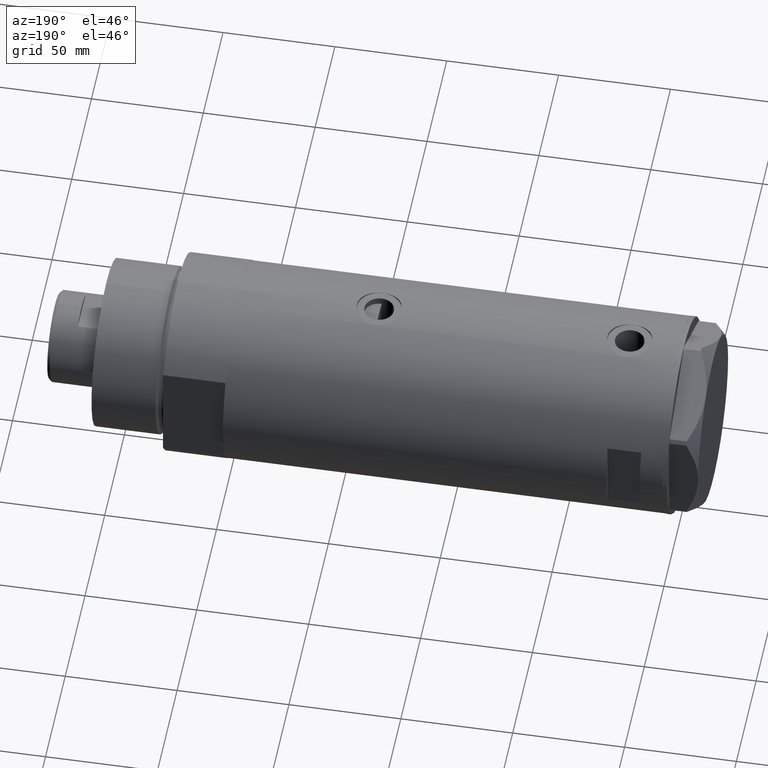
[diagram: clean part render]
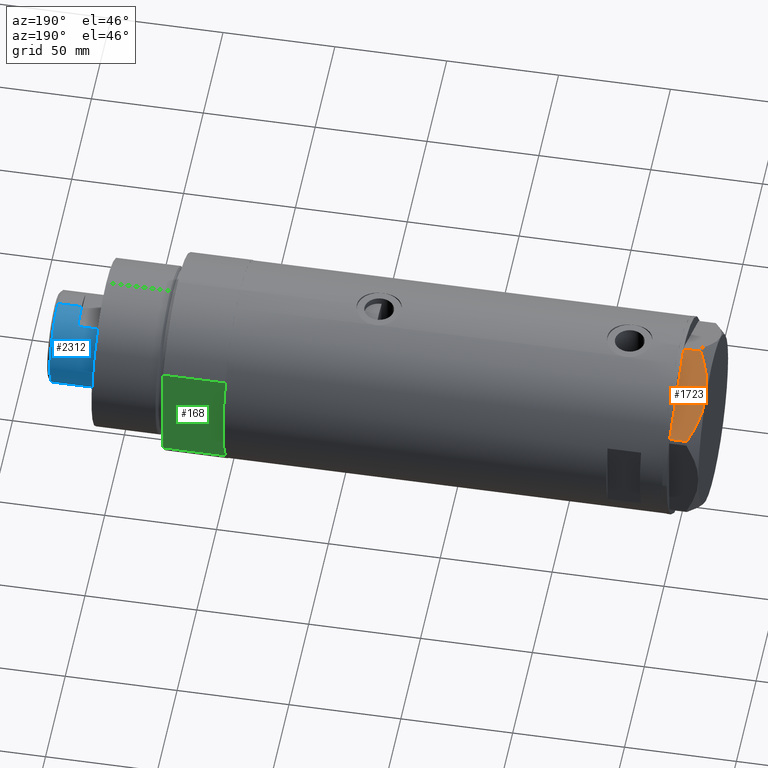
[diagram: same view with three faces highlighted in distinct colors, each labeled with its STEP entity id]
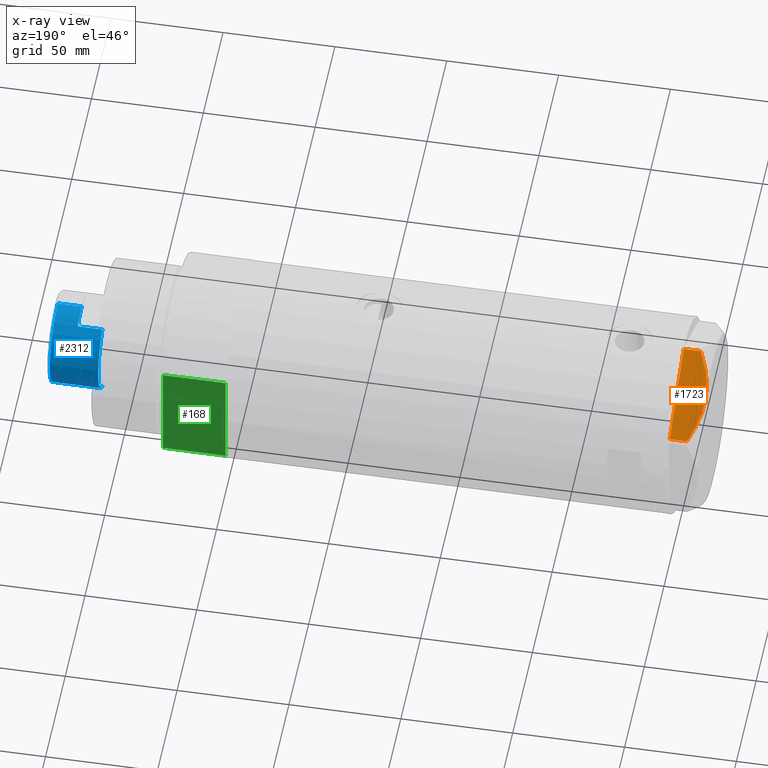
[diagram: x-ray of the same camera — body ghosted, the three highlighted faces saturated]
A machine part, auxiliary view with three faces highlighted in distinct colors.
The next image is the same camera in x-ray (body ghosted, the three faces saturated) — at least one of them is partly hidden behind the body in this view.
Their STEP definitions:

[orange] entity #1723 — the highlighted planar face has unit normal (-0, -0.5, -0.866).
#9 = CARTESIAN_POINT ( 'NONE',  ( 20.42709085942840730, -31.79635891736482023, 12.99999999999999645 ) ) ;
#47 = DIRECTION ( 'NONE',  ( 0.000000000000000000, 0.000000000000000000, -1.000000000000000000 ) ) ;
#224 = CARTESIAN_POINT ( 'NONE',  ( 18.09346002772999995, -33.14368130623511632, 12.99999999999999822 ) ) ;
#316 = VERTEX_POINT ( 'NONE', #854 ) ;
#395 = CARTESIAN_POINT ( 'NONE',  ( 33.94595399727396057, -23.99123964559198541, 9.210778219601310823 ) ) ;
#398 = FACE_OUTER_BOUND ( 'NONE', #2390, .T. ) ;
#626 = CARTESIAN_POINT ( 'NONE',  ( 15.73313492417777937, -34.50641564014599538, 12.83692902789789514 ) ) ;
#705 = ORIENTED_EDGE ( 'NONE', *, *, #1996, .T. ) ;
#758 = CARTESIAN_POINT ( 'NONE',  ( 21.96683860604023764, -30.90738514137435544, 12.87183830165162846 ) ) ;
#804 = VERTEX_POINT ( 'NONE', #3752 ) ;
#854 = CARTESIAN_POINT ( 'NONE',  ( 36.78005154776143115, -22.35497266190837706, 0.000000000000000000 ) ) ;
#903 = CARTESIAN_POINT ( 'NONE',  ( 18.87499999999998579, -32.69245899286256218, 13.00000000000000000 ) ) ;
#955 = CARTESIAN_POINT ( 'NONE',  ( 6.659529780759589457, -39.74506401221886165, 10.58681170757598977 ) ) ;
#973 = EDGE_CURVE ( 'NONE', #1575, #804, #4495, .T. ) ;
#979 = CARTESIAN_POINT ( 'NONE',  ( 12.63736081963744873, -36.29376165275263588, 12.35956205105863326 ) ) ;
#1043 = CARTESIAN_POINT ( 'NONE',  ( -4.107234936485837051E-15, -43.58994532381674247, 13.00000000000000000 ) ) ;
#1064 = CARTESIAN_POINT ( 'NONE',  ( 0.9699484522384296259, -43.02994532381681836, 7.709124142616899711 ) ) ;
#1100 = DIRECTION ( 'NONE',  ( -0.8660254037844388186, -0.4999999999999997224, 0.000000000000000000 ) ) ;
#1167 = DIRECTION ( 'NONE',  ( 0.000000000000000000, 0.000000000000000000, 1.000000000000000000 ) ) ;
#1201 = CARTESIAN_POINT ( 'NONE',  ( 0.9699484522385760643, -43.02994532381674020, 0.000000000000000000 ) ) ;
#1207 = DIRECTION ( 'NONE',  ( 0.8660254037844388186, 0.4999999999999997224, 0.000000000000000000 ) ) ;
#1335 = AXIS2_PLACEMENT_3D ( 'NONE', #1043, #2446, #1100 ) ;
#1488 = EDGE_CURVE ( 'NONE', #4180, #316, #2573, .T. ) ;
#1521 = B_SPLINE_CURVE_WITH_KNOTS ( 'NONE', 3,
 ( #2367, #1612, #955, #4161, #979, #3456, #626, #3009, #224, #4405 ),
 .UNSPECIFIED., .F., .F.,
 ( 4, 2, 2, 2, 4 ),
 ( 0.001231023567492486306, 0.01191187151549576335, 0.01725229548949740177, 0.01992250747649822532, 0.02259271946349904886 ),
 .UNSPECIFIED. ) ;
#1575 = VERTEX_POINT ( 'NONE', #903 ) ;
#1612 = CARTESIAN_POINT ( 'NONE',  ( 3.783045159267917956, -41.40580318275688398, 9.269459228581803600 ) ) ;
#1723 = ADVANCED_FACE ( 'NONE', ( #398 ), #3537, .F. ) ;
#1813 = CARTESIAN_POINT ( 'NONE',  ( 35.37320095427428157, -23.16721823076776232, 8.489459328479206590 ) ) ;
#1996 = EDGE_CURVE ( 'NONE', #316, #804, #3273, .T. ) ;
#2052 = EDGE_CURVE ( 'NONE', #2791, #4180, #2584, .T. ) ;
#2155 = CARTESIAN_POINT ( 'NONE',  ( 28.80058011347544422, -26.96192264248431769, 11.30742055474504859 ) ) ;
#2175 = CARTESIAN_POINT ( 'NONE',  ( 26.54034249379520460, -28.26687144063922830, 12.01242981158384993 ) ) ;
#2367 = CARTESIAN_POINT ( 'NONE',  ( 0.9699484522384296259, -43.02994532381681836, 7.709124142616899711 ) ) ;
#2390 = EDGE_LOOP ( 'NONE', ( #4453, #4528, #4504, #705, #2460 ) ) ;
#2446 = DIRECTION ( 'NONE',  ( -0.4999999999999997224, 0.8660254037844388186, 0.000000000000000000 ) ) ;
#2460 = ORIENTED_EDGE ( 'NONE', *, *, #973, .F. ) ;
#2573 = LINE ( 'NONE', #4360, #3608 ) ;
#2584 = LINE ( 'NONE', #3916, #3964 ) ;
#2629 = EDGE_CURVE ( 'NONE', #2791, #1575, #1521, .T. ) ;
#2791 = VERTEX_POINT ( 'NONE', #1064 ) ;
#2826 = CARTESIAN_POINT ( 'NONE',  ( 29.55075297405426227, -26.52881013949038547, 11.04644118613091841 ) ) ;
#2913 = CARTESIAN_POINT ( 'NONE',  ( 36.78005154776145247, -22.35497266190836640, 13.00000000000000000 ) ) ;
#3009 = CARTESIAN_POINT ( 'NONE',  ( 17.30879953081281641, -33.59670525535269547, 12.96759879420491401 ) ) ;
#3184 = CARTESIAN_POINT ( 'NONE',  ( 18.87499999999998579, -32.69245899286256218, 13.00000000000000000 ) ) ;
#3223 = CARTESIAN_POINT ( 'NONE',  ( 36.78005154775924268, -22.35497266190964538, 7.709124142618180464 ) ) ;
#3273 = LINE ( 'NONE', #2913, #3546 ) ;
#3456 = CARTESIAN_POINT ( 'NONE',  ( 14.95332775978646822, -34.95663751642331363, 12.73960743196719747 ) ) ;
#3537 = PLANE ( 'NONE',  #1335 ) ;
#3546 = VECTOR ( 'NONE', #1167, 1000.000000000000000 ) ;
#3565 = CARTESIAN_POINT ( 'NONE',  ( 31.76569840794746824, -25.25001079699180551, 10.17879673963500942 ) ) ;
#3608 = VECTOR ( 'NONE', #1207, 1000.000000000000114 ) ;
#3752 = CARTESIAN_POINT ( 'NONE',  ( 36.78005154775924268, -22.35497266190964538, 7.709124142618180464 ) ) ;
#3916 = CARTESIAN_POINT ( 'NONE',  ( 0.9699484522385762864, -43.02994532381674020, 13.00000000000000000 ) ) ;
#3919 = CARTESIAN_POINT ( 'NONE',  ( 25.02345495740816972, -29.14264686810265914, 12.37795492145971821 ) ) ;
#3964 = VECTOR ( 'NONE', #47, 1000.000000000000000 ) ;
#4161 = CARTESIAN_POINT ( 'NONE',  ( 11.12401302890051191, -37.16749340711212568, 11.98878493998158312 ) ) ;
#4180 = VERTEX_POINT ( 'NONE', #1201 ) ;
#4215 = CARTESIAN_POINT ( 'NONE',  ( 31.03235934281740427, -25.67340430365192105, 10.48240969891324070 ) ) ;
#4360 = CARTESIAN_POINT ( 'NONE',  ( -4.107234936485837051E-15, -43.58994532381674247, 0.000000000000000000 ) ) ;
#4405 = CARTESIAN_POINT ( 'NONE',  ( 18.87499999999998579, -32.69245899286256218, 13.00000000000000000 ) ) ;
#4453 = ORIENTED_EDGE ( 'NONE', *, *, #2629, .F. ) ;
#4495 = B_SPLINE_CURVE_WITH_KNOTS ( 'NONE', 3,
 ( #3184, #9, #758, #3919, #2175, #2155, #2826, #4215, #3565, #395, #1813, #3223 ),
 .UNSPECIFIED., .F., .F.,
 ( 4, 2, 2, 2, 2, 4 ),
 ( 0.02259271946349904886, 0.02789559809390703207, 0.03319847672431501528, 0.03584991603951900863, 0.03850135535472300197, 0.04380423398513099559 ),
 .UNSPECIFIED. ) ;
#4504 = ORIENTED_EDGE ( 'NONE', *, *, #1488, .T. ) ;
#4528 = ORIENTED_EDGE ( 'NONE', *, *, #2052, .T. ) ;

[blue] entity #2312 — the highlighted cylindrical surface (partial cylindrical patch) has radius 20.5 mm, axis along (-1, -0, 0).
#20 = CARTESIAN_POINT ( 'NONE',  ( 0.000000000000000000, 0.000000000000000000, 241.3000000000000114 ) ) ;
#28 = DIRECTION ( 'NONE',  ( 1.000000000000000000, 0.000000000000000000, 0.000000000000000000 ) ) ;
#63 = DIRECTION ( 'NONE',  ( 1.000000000000000000, 0.000000000000000000, 0.000000000000000000 ) ) ;
#116 = AXIS2_PLACEMENT_3D ( 'NONE', #1284, #4080, #4450 ) ;
#123 = ORIENTED_EDGE ( 'NONE', *, *, #4149, .T. ) ;
#169 = ORIENTED_EDGE ( 'NONE', *, *, #2854, .F. ) ;
#174 = EDGE_CURVE ( 'NONE', #2110, #2589, #727, .T. ) ;
#222 = VECTOR ( 'NONE', #1010, 1000.000000000000000 ) ;
#272 = CARTESIAN_POINT ( 'NONE',  ( 20.50000000000000355, 2.510525938252074481E-15, 241.3000000000000114 ) ) ;
#331 = CYLINDRICAL_SURFACE ( 'NONE', #1589, 20.50000000000000355 ) ;
#469 = DIRECTION ( 'NONE',  ( -0.000000000000000000, -0.000000000000000000, -1.000000000000000000 ) ) ;
#558 = VECTOR ( 'NONE', #1662, 1000.000000000000000 ) ;
#646 = VECTOR ( 'NONE', #2292, 1000.000000000000000 ) ;
#649 = AXIS2_PLACEMENT_3D ( 'NONE', #1916, #3639, #63 ) ;
#727 = LINE ( 'NONE', #3130, #222 ) ;
#748 = DIRECTION ( 'NONE',  ( -1.000000000000000000, 0.000000000000000000, 0.000000000000000000 ) ) ;
#810 = CARTESIAN_POINT ( 'NONE',  ( 20.50000000000000355, 2.510525938252074481E-15, 251.9000000000001194 ) ) ;
#914 = EDGE_CURVE ( 'NONE', #3361, #2110, #4198, .T. ) ;
#969 = ORIENTED_EDGE ( 'NONE', *, *, #914, .T. ) ;
#975 = LINE ( 'NONE', #2363, #558 ) ;
#1000 = LINE ( 'NONE', #272, #646 ) ;
#1010 = DIRECTION ( 'NONE',  ( -0.000000000000000000, -0.000000000000000000, -1.000000000000000000 ) ) ;
#1051 = DIRECTION ( 'NONE',  ( -0.000000000000000000, -0.000000000000000000, -1.000000000000000000 ) ) ;
#1112 = VERTEX_POINT ( 'NONE', #4447 ) ;
#1121 = CARTESIAN_POINT ( 'NONE',  ( -20.50000000000000000, 0.000000000000000000, 241.3000000000000114 ) ) ;
#1284 = CARTESIAN_POINT ( 'NONE',  ( 0.000000000000000000, 0.000000000000000000, 230.3000000000000114 ) ) ;
#1336 = VERTEX_POINT ( 'NONE', #810 ) ;
#1370 = CARTESIAN_POINT ( 'NONE',  ( -17.97852886083842705, 9.849999999999965894, 230.3000000000000114 ) ) ;
#1419 = CARTESIAN_POINT ( 'NONE',  ( 0.000000000000000000, 0.000000000000000000, 241.3000000000000114 ) ) ;
#1589 = AXIS2_PLACEMENT_3D ( 'NONE', #20, #1051, #748 ) ;
#1662 = DIRECTION ( 'NONE',  ( -0.000000000000000000, -0.000000000000000000, -1.000000000000000000 ) ) ;
#1792 = CARTESIAN_POINT ( 'NONE',  ( 0.000000000000000000, 0.000000000000000000, 241.3000000000000114 ) ) ;
#1916 = CARTESIAN_POINT ( 'NONE',  ( 0.000000000000000000, 0.000000000000000000, 251.9000000000001194 ) ) ;
#2103 = DIRECTION ( 'NONE',  ( 0.000000000000000000, 0.000000000000000000, 1.000000000000000000 ) ) ;
#2110 = VERTEX_POINT ( 'NONE', #3386 ) ;
#2117 = ORIENTED_EDGE ( 'NONE', *, *, #2278, .T. ) ;
#2278 = EDGE_CURVE ( 'NONE', #3061, #2412, #2695, .T. ) ;
#2292 = DIRECTION ( 'NONE',  ( -0.000000000000000000, -0.000000000000000000, -1.000000000000000000 ) ) ;
#2312 = ADVANCED_FACE ( 'NONE', ( #3889 ), #331, .T. ) ;
#2363 = CARTESIAN_POINT ( 'NONE',  ( -20.50000000000000355, 0.000000000000000000, 241.3000000000000114 ) ) ;
#2412 = VERTEX_POINT ( 'NONE', #1121 ) ;
#2458 = EDGE_CURVE ( 'NONE', #1112, #2412, #975, .T. ) ;
#2513 = ORIENTED_EDGE ( 'NONE', *, *, #4309, .T. ) ;
#2585 = VERTEX_POINT ( 'NONE', #1370 ) ;
#2589 = VERTEX_POINT ( 'NONE', #3399 ) ;
#2626 = CIRCLE ( 'NONE', #649, 20.50000000000000355 ) ;
#2695 = CIRCLE ( 'NONE', #3575, 20.50000000000000000 ) ;
#2854 = EDGE_CURVE ( 'NONE', #3061, #2585, #4356, .T. ) ;
#3022 = ORIENTED_EDGE ( 'NONE', *, *, #2458, .F. ) ;
#3061 = VERTEX_POINT ( 'NONE', #4204 ) ;
#3130 = CARTESIAN_POINT ( 'NONE',  ( 17.97852886083842705, 9.849999999999997868, 241.3000000000000114 ) ) ;
#3346 = ORIENTED_EDGE ( 'NONE', *, *, #3721, .T. ) ;
#3361 = VERTEX_POINT ( 'NONE', #4166 ) ;
#3368 = VECTOR ( 'NONE', #469, 1000.000000000000000 ) ;
#3386 = CARTESIAN_POINT ( 'NONE',  ( 17.97852886083842705, 9.849999999999997868, 241.3000000000000114 ) ) ;
#3393 = ORIENTED_EDGE ( 'NONE', *, *, #174, .T. ) ;
#3399 = CARTESIAN_POINT ( 'NONE',  ( 17.97852886083842705, 9.849999999999997868, 230.3000000000000114 ) ) ;
#3466 = EDGE_LOOP ( 'NONE', ( #2513, #3346, #969, #3393, #123, #169, #2117, #3022 ) ) ;
#3575 = AXIS2_PLACEMENT_3D ( 'NONE', #1419, #2103, #3852 ) ;
#3639 = DIRECTION ( 'NONE',  ( 0.000000000000000000, 0.000000000000000000, -1.000000000000000000 ) ) ;
#3656 = CARTESIAN_POINT ( 'NONE',  ( -17.97852886083842705, 9.849999999999997868, 241.3000000000000114 ) ) ;
#3721 = EDGE_CURVE ( 'NONE', #1336, #3361, #1000, .T. ) ;
#3852 = DIRECTION ( 'NONE',  ( 1.000000000000000000, 0.000000000000000000, 0.000000000000000000 ) ) ;
#3880 = DIRECTION ( 'NONE',  ( 0.000000000000000000, 0.000000000000000000, 1.000000000000000000 ) ) ;
#3889 = FACE_OUTER_BOUND ( 'NONE', #3466, .T. ) ;
#3899 = AXIS2_PLACEMENT_3D ( 'NONE', #1792, #3880, #28 ) ;
#4080 = DIRECTION ( 'NONE',  ( 0.000000000000000000, 0.000000000000000000, 1.000000000000000000 ) ) ;
#4149 = EDGE_CURVE ( 'NONE', #2589, #2585, #4170, .T. ) ;
#4166 = CARTESIAN_POINT ( 'NONE',  ( 20.50000000000000000, 2.510525938252074481E-15, 241.3000000000000114 ) ) ;
#4170 = CIRCLE ( 'NONE', #116, 20.49999999999998934 ) ;
#4198 = CIRCLE ( 'NONE', #3899, 20.50000000000000000 ) ;
#4204 = CARTESIAN_POINT ( 'NONE',  ( -17.97852886083842705, 9.849999999999997868, 241.3000000000000114 ) ) ;
#4309 = EDGE_CURVE ( 'NONE', #1112, #1336, #2626, .T. ) ;
#4356 = LINE ( 'NONE', #3656, #3368 ) ;
#4447 = CARTESIAN_POINT ( 'NONE',  ( -20.50000000000000355, 0.000000000000000000, 251.9000000000001194 ) ) ;
#4450 = DIRECTION ( 'NONE',  ( 1.000000000000000000, 0.000000000000000000, 0.000000000000000000 ) ) ;

[green] entity #168 — the highlighted planar face has unit normal (0, -1, -0).
#41 = DIRECTION ( 'NONE',  ( -0.000000000000000000, -0.000000000000000000, 1.000000000000000000 ) ) ;
#112 = ORIENTED_EDGE ( 'NONE', *, *, #1160, .F. ) ;
#168 = ADVANCED_FACE ( 'NONE', ( #3488 ), #1358, .F. ) ;
#312 = DIRECTION ( 'NONE',  ( 0.000000000000000000, -0.000000000000000000, -1.000000000000000000 ) ) ;
#360 = LINE ( 'NONE', #1810, #1413 ) ;
#502 = CARTESIAN_POINT ( 'NONE',  ( -23.01629857296780557, 37.50000000000000000, 0.000000000000000000 ) ) ;
#786 = DIRECTION ( 'NONE',  ( 1.000000000000000000, 0.000000000000000000, 0.000000000000000000 ) ) ;
#875 = LINE ( 'NONE', #1942, #4496 ) ;
#876 = LINE ( 'NONE', #502, #1083 ) ;
#949 = DIRECTION ( 'NONE',  ( 1.000000000000000000, 0.000000000000000000, 0.000000000000000000 ) ) ;
#996 = CARTESIAN_POINT ( 'NONE',  ( 0.000000000000000000, 37.50000000000000000, 27.89999999999999858 ) ) ;
#1016 = VERTEX_POINT ( 'NONE', #3292 ) ;
#1022 = CARTESIAN_POINT ( 'NONE',  ( 13.91941090707505957, 37.50000000000000000, 0.000000000000000000 ) ) ;
#1068 = CARTESIAN_POINT ( 'NONE',  ( -23.01629857296780557, 37.50000000000000000, 0.000000000000000000 ) ) ;
#1083 = VECTOR ( 'NONE', #2229, 1000.000000000000000 ) ;
#1088 = CARTESIAN_POINT ( 'NONE',  ( 23.01629857296780557, 37.50000000000000000, 0.000000000000000000 ) ) ;
#1160 = EDGE_CURVE ( 'NONE', #1494, #1742, #4397, .T. ) ;
#1187 = ORIENTED_EDGE ( 'NONE', *, *, #4300, .F. ) ;
#1358 = PLANE ( 'NONE',  #2495 ) ;
#1413 = VECTOR ( 'NONE', #2608, 1000.000000000000000 ) ;
#1494 = VERTEX_POINT ( 'NONE', #3971 ) ;
#1495 = DIRECTION ( 'NONE',  ( 1.000000000000000000, 0.000000000000000000, 0.000000000000000000 ) ) ;
#1729 = VERTEX_POINT ( 'NONE', #4160 ) ;
#1742 = VERTEX_POINT ( 'NONE', #1022 ) ;
#1799 = ORIENTED_EDGE ( 'NONE', *, *, #2246, .T. ) ;
#1810 = CARTESIAN_POINT ( 'NONE',  ( -23.01629857296780557, 37.50000000000000000, 0.000000000000000000 ) ) ;
#1942 = CARTESIAN_POINT ( 'NONE',  ( -23.01629857296780557, 37.50000000000000000, 27.89999999999999858 ) ) ;
#1975 = CARTESIAN_POINT ( 'NONE',  ( -23.01629857296780557, 37.50000000000000000, 0.000000000000000000 ) ) ;
#2043 = EDGE_CURVE ( 'NONE', #1729, #1016, #360, .T. ) ;
#2132 = ORIENTED_EDGE ( 'NONE', *, *, #4454, .T. ) ;
#2229 = DIRECTION ( 'NONE',  ( 1.000000000000000000, 0.000000000000000000, 0.000000000000000000 ) ) ;
#2246 = EDGE_CURVE ( 'NONE', #3980, #2541, #875, .T. ) ;
#2257 = EDGE_CURVE ( 'NONE', #4442, #2541, #3541, .T. ) ;
#2298 = ORIENTED_EDGE ( 'NONE', *, *, #2043, .T. ) ;
#2316 = VECTOR ( 'NONE', #41, 1000.000000000000000 ) ;
#2433 = VECTOR ( 'NONE', #4050, 1000.000000000000000 ) ;
#2455 = ORIENTED_EDGE ( 'NONE', *, *, #3152, .F. ) ;
#2495 = AXIS2_PLACEMENT_3D ( 'NONE', #1068, #2761, #312 ) ;
#2541 = VERTEX_POINT ( 'NONE', #4000 ) ;
#2562 = CARTESIAN_POINT ( 'NONE',  ( 23.01629857296780557, 37.50000000000000000, 0.000000000000000000 ) ) ;
#2608 = DIRECTION ( 'NONE',  ( -0.000000000000000000, -0.000000000000000000, 1.000000000000000000 ) ) ;
#2693 = LINE ( 'NONE', #4085, #3868 ) ;
#2761 = DIRECTION ( 'NONE',  ( 0.000000000000000000, -1.000000000000000000, 0.000000000000000000 ) ) ;
#3152 = EDGE_CURVE ( 'NONE', #1729, #1494, #2693, .T. ) ;
#3292 = CARTESIAN_POINT ( 'NONE',  ( -23.01629857296780557, 37.50000000000000000, 27.89999999999999858 ) ) ;
#3382 = VECTOR ( 'NONE', #1495, 1000.000000000000000 ) ;
#3488 = FACE_OUTER_BOUND ( 'NONE', #4182, .T. ) ;
#3541 = LINE ( 'NONE', #1088, #2316 ) ;
#3868 = VECTOR ( 'NONE', #949, 1000.000000000000000 ) ;
#3958 = LINE ( 'NONE', #4282, #3382 ) ;
#3971 = CARTESIAN_POINT ( 'NONE',  ( -13.91941090707505957, 37.50000000000000000, 0.000000000000000000 ) ) ;
#3980 = VERTEX_POINT ( 'NONE', #996 ) ;
#4000 = CARTESIAN_POINT ( 'NONE',  ( 23.01629857296780557, 37.50000000000000000, 27.89999999999999858 ) ) ;
#4050 = DIRECTION ( 'NONE',  ( 1.000000000000000000, 0.000000000000000000, 0.000000000000000000 ) ) ;
#4085 = CARTESIAN_POINT ( 'NONE',  ( -23.01629857296780557, 37.50000000000000000, 0.000000000000000000 ) ) ;
#4160 = CARTESIAN_POINT ( 'NONE',  ( -23.01629857296780557, 37.50000000000000000, 0.000000000000000000 ) ) ;
#4182 = EDGE_LOOP ( 'NONE', ( #2132, #1799, #4287, #1187, #112, #2455, #2298 ) ) ;
#4282 = CARTESIAN_POINT ( 'NONE',  ( -23.01629857296780557, 37.50000000000000000, 27.89999999999999858 ) ) ;
#4287 = ORIENTED_EDGE ( 'NONE', *, *, #2257, .F. ) ;
#4300 = EDGE_CURVE ( 'NONE', #1742, #4442, #876, .T. ) ;
#4397 = LINE ( 'NONE', #1975, #2433 ) ;
#4442 = VERTEX_POINT ( 'NONE', #2562 ) ;
#4454 = EDGE_CURVE ( 'NONE', #1016, #3980, #3958, .T. ) ;
#4496 = VECTOR ( 'NONE', #786, 1000.000000000000000 ) ;